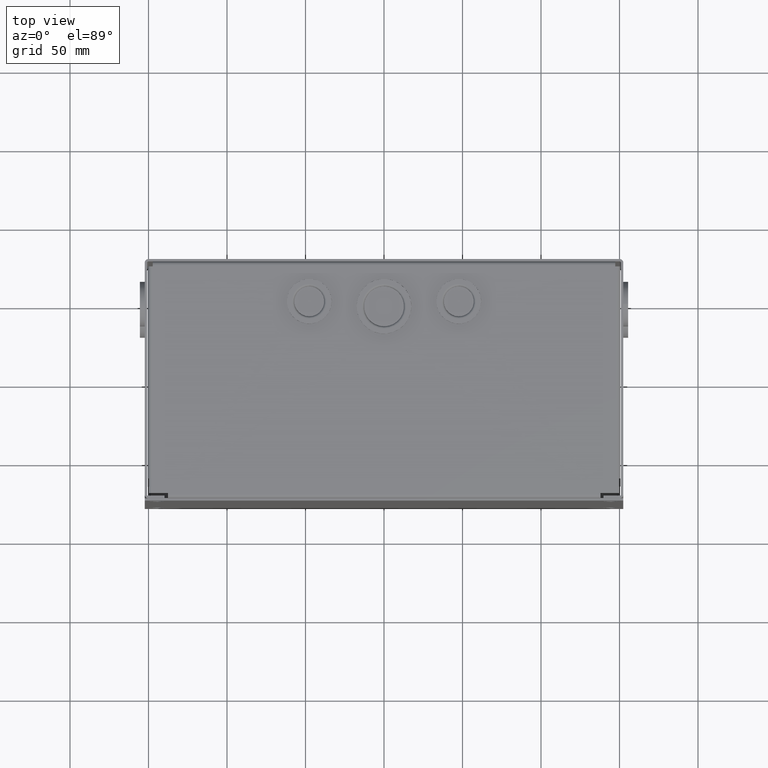
[diagram: clean part render]
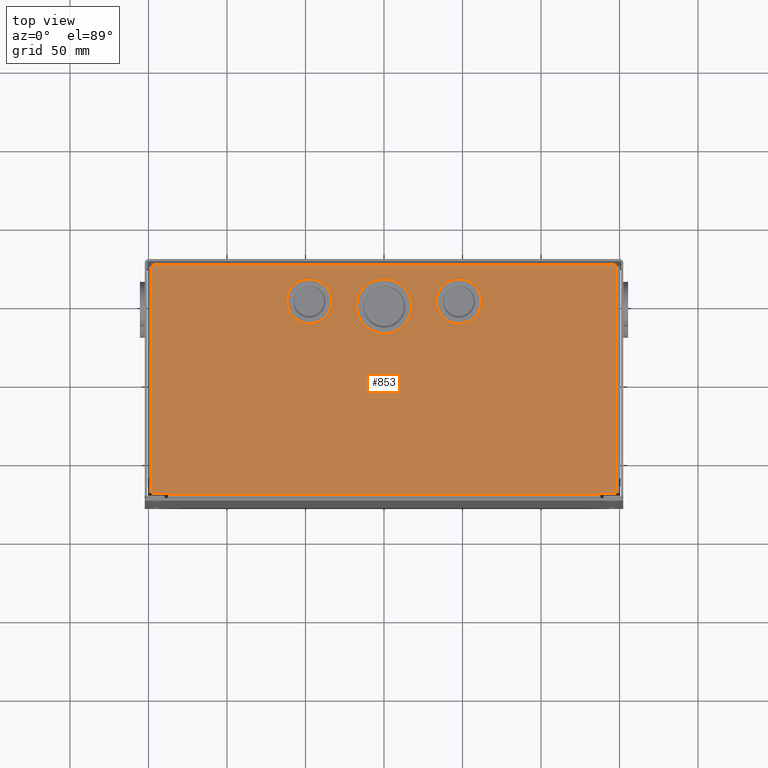
[diagram: same view with one face highlighted and labeled with its STEP entity id]
A machine part, top view. The second image highlights one B-rep face of the part: STEP entity #853.
In plain terms, the highlighted planar face has unit normal (-0, 0, 1).
Its self-contained STEP definition (entity closure, byte-faithful):
#853 = ADVANCED_FACE( '', ( #1852, #1853, #1854, #1855 ), #1856, .T. );
#1852 = FACE_BOUND( '', #2966, .T. );
#1853 = FACE_OUTER_BOUND( '', #2967, .T. );
#1854 = FACE_BOUND( '', #2968, .T. );
#1855 = FACE_BOUND( '', #2969, .T. );
#1856 = PLANE( '', #2970 );
#2966 = EDGE_LOOP( '', ( #5123 ) );
#2967 = EDGE_LOOP( '', ( #5124, #5125, #5126, #5127, #5128, #5129, #5130, #5131, #5132, #5133, #5134, #5135 ) );
#2968 = EDGE_LOOP( '', ( #5136 ) );
#2969 = EDGE_LOOP( '', ( #5137 ) );
#2970 = AXIS2_PLACEMENT_3D( '', #5138, #5139, #5140 );
#5123 = ORIENTED_EDGE( '', *, *, #5970, .T. );
#5124 = ORIENTED_EDGE( '', *, *, #6086, .F. );
#5125 = ORIENTED_EDGE( '', *, *, #6713, .F. );
#5126 = ORIENTED_EDGE( '', *, *, #6030, .F. );
#5127 = ORIENTED_EDGE( '', *, *, #6719, .F. );
#5128 = ORIENTED_EDGE( '', *, *, #6724, .T. );
#5129 = ORIENTED_EDGE( '', *, *, #6631, .F. );
#5130 = ORIENTED_EDGE( '', *, *, #6533, .F. );
#5131 = ORIENTED_EDGE( '', *, *, #6725, .T. );
#5132 = ORIENTED_EDGE( '', *, *, #6347, .F. );
#5133 = ORIENTED_EDGE( '', *, *, #6103, .F. );
#5134 = ORIENTED_EDGE( '', *, *, #5967, .T. );
#5135 = ORIENTED_EDGE( '', *, *, #6726, .F. );
#5136 = ORIENTED_EDGE( '', *, *, #6727, .T. );
#5137 = ORIENTED_EDGE( '', *, *, #6613, .T. );
#5138 = CARTESIAN_POINT( '', ( 0.000000000000000, 0.000000000000000, 0.000000000000000 ) );
#5139 = DIRECTION( '', ( 0.000000000000000, -1.00000000000000, 0.000000000000000 ) );
#5140 = DIRECTION( '', ( 0.000000000000000, 0.000000000000000, -1.00000000000000 ) );
#5967 = EDGE_CURVE( '', #6980, #6978, #6981, .T. );
#5970 = EDGE_CURVE( '', #6984, #6984, #6985, .F. );
#6030 = EDGE_CURVE( '', #7090, #7091, #7092, .T. );
#6086 = EDGE_CURVE( '', #7183, #7185, #7186, .T. );
#6103 = EDGE_CURVE( '', #6980, #7213, #7214, .T. );
#6347 = EDGE_CURVE( '', #7213, #7609, #7610, .T. );
#6533 = EDGE_CURVE( '', #7885, #7887, #7888, .T. );
#6613 = EDGE_CURVE( '', #7997, #7997, #7998, .F. );
#6631 = EDGE_CURVE( '', #7887, #8019, #8020, .T. );
#6713 = EDGE_CURVE( '', #7091, #7183, #8123, .T. );
#6719 = EDGE_CURVE( '', #8130, #7090, #8132, .T. );
#6724 = EDGE_CURVE( '', #8130, #8019, #8137, .T. );
#6725 = EDGE_CURVE( '', #7885, #7609, #8138, .T. );
#6726 = EDGE_CURVE( '', #7185, #6978, #8139, .T. );
#6727 = EDGE_CURVE( '', #8140, #8140, #8141, .F. );
#6978 = VERTEX_POINT( '', #8456 );
#6980 = VERTEX_POINT( '', #8458 );
#6981 = LINE( '', #8459, #8460 );
#6984 = VERTEX_POINT( '', #8463 );
#6985 = CIRCLE( '', #8464, 14.2875000000000 );
#7090 = VERTEX_POINT( '', #8598 );
#7091 = VERTEX_POINT( '', #8599 );
#7092 = LINE( '', #8600, #8601 );
#7183 = VERTEX_POINT( '', #8726 );
#7185 = VERTEX_POINT( '', #8728 );
#7186 = LINE( '', #8729, #8730 );
#7213 = VERTEX_POINT( '', #8765 );
#7214 = LINE( '', #8766, #8767 );
#7609 = VERTEX_POINT( '', #9329 );
#7610 = LINE( '', #9330, #9331 );
#7885 = VERTEX_POINT( '', #9754 );
#7887 = VERTEX_POINT( '', #9756 );
#7888 = LINE( '', #9757, #9758 );
#7997 = VERTEX_POINT( '', #9904 );
#7998 = CIRCLE( '', #9905, 17.4625000000000 );
#8019 = VERTEX_POINT( '', #9944 );
#8020 = LINE( '', #9945, #9946 );
#8123 = LINE( '', #10073, #10074 );
#8130 = VERTEX_POINT( '', #10084 );
#8132 = LINE( '', #10086, #10087 );
#8137 = LINE( '', #10092, #10093 );
#8138 = LINE( '', #10094, #10095 );
#8139 = LINE( '', #10096, #10097 );
#8140 = VERTEX_POINT( '', #10098 );
#8141 = CIRCLE( '', #10099, 14.2875000000000 );
#8456 = CARTESIAN_POINT( '', ( 147.304529442132, 0.000000000000000, -73.1012000000000 ) );
#8458 = CARTESIAN_POINT( '', ( -147.304529442132, 0.000000000000000, -73.1012000000000 ) );
#8459 = CARTESIAN_POINT( '', ( 148.142325000000, 0.000000000000000, -73.1012000000000 ) );
#8460 = VECTOR( '', #10365, 1000.00000000000 );
#8463 = CARTESIAN_POINT( '', ( 47.6250000000000, 0.000000000000000, -64.2620000000000 ) );
#8464 = AXIS2_PLACEMENT_3D( '', #10369, #10370, #10371 );
#8598 = CARTESIAN_POINT( '', ( 137.716029442132, 0.000000000000000, 72.2634044421318 ) );
#8599 = CARTESIAN_POINT( '', ( 148.142325000000, 4.45050743848444E-015, 72.2634044421318 ) );
#8600 = CARTESIAN_POINT( '', ( 0.000000000000000, 0.000000000000000, 72.2634044421318 ) );
#8601 = VECTOR( '', #10445, 1000.00000000000 );
#8726 = CARTESIAN_POINT( '', ( 148.142325000000, 2.56500912070790E-017, -72.2634044421318 ) );
#8728 = CARTESIAN_POINT( '', ( 147.304529442132, 0.000000000000000, -72.2634044421319 ) );
#8729 = CARTESIAN_POINT( '', ( -7.66651015303249E-014, 0.000000000000000, -72.2634044421317 ) );
#8730 = VECTOR( '', #10510, 1000.00000000000 );
#8765 = CARTESIAN_POINT( '', ( -147.304529442132, 0.000000000000000, -72.2634044421319 ) );
#8766 = CARTESIAN_POINT( '', ( -147.304529442132, 0.000000000000000, 0.000000000000000 ) );
#8767 = VECTOR( '', #10531, 1000.00000000000 );
#9329 = CARTESIAN_POINT( '', ( -148.142325000000, 0.000000000000000, -72.2634044421319 ) );
#9330 = CARTESIAN_POINT( '', ( 7.66651015303249E-014, 0.000000000000000, -72.2634044421317 ) );
#9331 = VECTOR( '', #10788, 1000.00000000000 );
#9754 = CARTESIAN_POINT( '', ( -148.142325000000, 0.000000000000000, 72.2634044421318 ) );
#9756 = CARTESIAN_POINT( '', ( -137.716029442132, 0.000000000000000, 72.2634044421318 ) );
#9757 = CARTESIAN_POINT( '', ( 0.000000000000000, 0.000000000000000, 72.2634044421318 ) );
#9758 = VECTOR( '', #10998, 1000.00000000000 );
#9904 = CARTESIAN_POINT( '', ( 1.04083408558608E-014, 0.000000000000000, -64.2620000000000 ) );
#9905 = AXIS2_PLACEMENT_3D( '', #11102, #11103, #11104 );
#9944 = CARTESIAN_POINT( '', ( -137.716029442132, 0.000000000000000, 73.1012000000000 ) );
#9945 = CARTESIAN_POINT( '', ( -137.716029442132, 0.000000000000000, 0.000000000000000 ) );
#9946 = VECTOR( '', #11114, 1000.00000000000 );
#10073 = CARTESIAN_POINT( '', ( 148.142325000000, 8.95231505938305E-015, 73.1012000000000 ) );
#10074 = VECTOR( '', #11205, 1000.00000000000 );
#10084 = CARTESIAN_POINT( '', ( 137.716029442132, 0.000000000000000, 73.1012000000000 ) );
#10086 = CARTESIAN_POINT( '', ( 137.716029442132, 0.000000000000000, 0.000000000000000 ) );
#10087 = VECTOR( '', #11212, 1000.00000000000 );
#10092 = CARTESIAN_POINT( '', ( -150.479125000000, 0.000000000000000, 73.1012000000000 ) );
#10093 = VECTOR( '', #11213, 1000.00000000000 );
#10094 = CARTESIAN_POINT( '', ( -148.142325000000, 0.000000000000000, -75.4380000000000 ) );
#10095 = VECTOR( '', #11214, 1000.00000000000 );
#10096 = CARTESIAN_POINT( '', ( 147.304529442132, 0.000000000000000, 0.000000000000000 ) );
#10097 = VECTOR( '', #11215, 1000.00000000000 );
#10098 = CARTESIAN_POINT( '', ( -47.6250000000000, 0.000000000000000, -64.2620000000000 ) );
#10099 = AXIS2_PLACEMENT_3D( '', #11216, #11217, #11218 );
#10365 = DIRECTION( '', ( 1.00000000000000, 0.000000000000000, 0.000000000000000 ) );
#10369 = CARTESIAN_POINT( '', ( 47.6250000000000, 0.000000000000000, -49.9745000000000 ) );
#10370 = DIRECTION( '', ( 0.000000000000000, -1.00000000000000, 0.000000000000000 ) );
#10371 = DIRECTION( '', ( 0.000000000000000, 0.000000000000000, -1.00000000000000 ) );
#10445 = DIRECTION( '', ( 1.00000000000000, 0.000000000000000, 0.000000000000000 ) );
#10510 = DIRECTION( '', ( -1.00000000000000, 0.000000000000000, 1.06091184219971E-015 ) );
#10531 = DIRECTION( '', ( 0.000000000000000, 0.000000000000000, 1.00000000000000 ) );
#10788 = DIRECTION( '', ( -1.00000000000000, 0.000000000000000, -1.06091184219971E-015 ) );
#10998 = DIRECTION( '', ( 1.00000000000000, 0.000000000000000, 0.000000000000000 ) );
#11102 = CARTESIAN_POINT( '', ( 1.04083408558608E-014, 0.000000000000000, -46.7995000000000 ) );
#11103 = DIRECTION( '', ( 0.000000000000000, -1.00000000000000, 0.000000000000000 ) );
#11104 = DIRECTION( '', ( 0.000000000000000, 0.000000000000000, -1.00000000000000 ) );
#11114 = DIRECTION( '', ( 0.000000000000000, 0.000000000000000, 1.00000000000000 ) );
#11205 = DIRECTION( '', ( 1.22464679914735E-016, -6.12323399573677E-017, -1.00000000000000 ) );
#11212 = DIRECTION( '', ( 0.000000000000000, 0.000000000000000, -1.00000000000000 ) );
#11213 = DIRECTION( '', ( -1.00000000000000, 0.000000000000000, 0.000000000000000 ) );
#11214 = DIRECTION( '', ( 0.000000000000000, 0.000000000000000, -1.00000000000000 ) );
#11215 = DIRECTION( '', ( 0.000000000000000, 0.000000000000000, -1.00000000000000 ) );
#11216 = CARTESIAN_POINT( '', ( -47.6250000000000, 0.000000000000000, -49.9745000000000 ) );
#11217 = DIRECTION( '', ( 0.000000000000000, -1.00000000000000, 0.000000000000000 ) );
#11218 = DIRECTION( '', ( 0.000000000000000, 0.000000000000000, -1.00000000000000 ) );